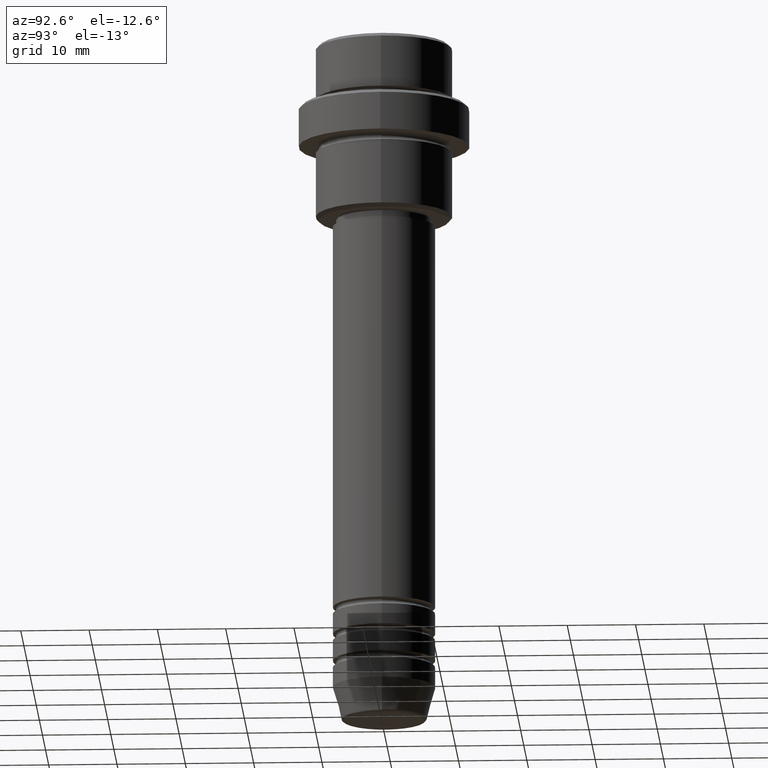
[diagram: clean part render]
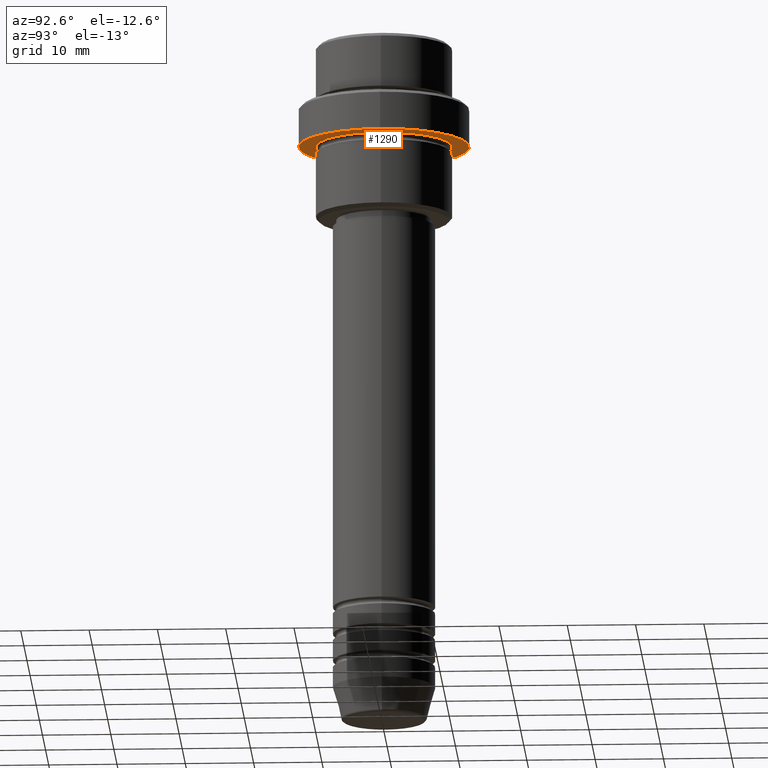
[diagram: same view with one face highlighted and labeled with its STEP entity id]
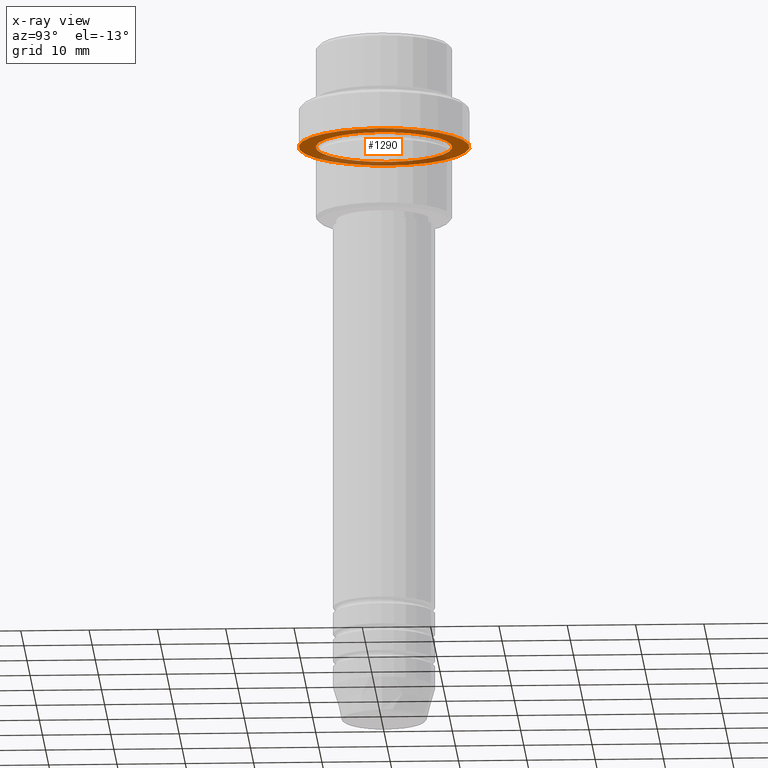
[diagram: x-ray of the same camera — body ghosted, the highlighted face saturated]
A machine part, auxiliary view. The second image highlights one B-rep face of the part: STEP entity #1290.
The next image is the same camera in x-ray: the body ghosted, the highlighted face saturated — about 30% of this face is hidden behind the body in this view.
In plain terms, the highlighted planar face has unit normal (0, 0, -1).
Its self-contained STEP definition (entity closure, byte-faithful):
#10 = DIRECTION ( 'NONE',  ( -1.000000000000000000, 0.000000000000000000, 0.000000000000000000 ) ) ;
#36 = CARTESIAN_POINT ( 'NONE',  ( 0.000000000000000000, 12.50000000000000000, -15.00000000000000000 ) ) ;
#37 = EDGE_LOOP ( 'NONE', ( #240, #303 ) ) ;
#114 = CIRCLE ( 'NONE', #390, 12.50000000000000000 ) ;
#116 = DIRECTION ( 'NONE',  ( -0.000000000000000000, -0.000000000000000000, 1.000000000000000000 ) ) ;
#121 = DIRECTION ( 'NONE',  ( 0.000000000000000000, 0.000000000000000000, -1.000000000000000000 ) ) ;
#136 = CIRCLE ( 'NONE', #933, 12.50000000000000000 ) ;
#156 = DIRECTION ( 'NONE',  ( -0.000000000000000000, -0.000000000000000000, 1.000000000000000000 ) ) ;
#200 = DIRECTION ( 'NONE',  ( -0.000000000000000000, -0.000000000000000000, 1.000000000000000000 ) ) ;
#212 = CARTESIAN_POINT ( 'NONE',  ( 12.50000000000000000, 0.000000000000000000, -15.00000000000000178 ) ) ;
#233 = DIRECTION ( 'NONE',  ( -0.000000000000000000, -0.000000000000000000, 1.000000000000000000 ) ) ;
#240 = ORIENTED_EDGE ( 'NONE', *, *, #537, .F. ) ;
#244 = DIRECTION ( 'NONE',  ( 1.000000000000000000, 0.000000000000000000, 0.000000000000000000 ) ) ;
#247 = DIRECTION ( 'NONE',  ( -1.000000000000000000, 0.000000000000000000, -0.000000000000000000 ) ) ;
#303 = ORIENTED_EDGE ( 'NONE', *, *, #407, .F. ) ;
#330 = VERTEX_POINT ( 'NONE', #212 ) ;
#362 = CARTESIAN_POINT ( 'NONE',  ( -12.50000000000000000, 1.530808498934191521E-15, -15.00000000000000178 ) ) ;
#371 = CIRCLE ( 'NONE', #957, 9.999999999999994671 ) ;
#390 = AXIS2_PLACEMENT_3D ( 'NONE', #1318, #233, #244 ) ;
#407 = EDGE_CURVE ( 'NONE', #590, #330, #114, .T. ) ;
#450 = CARTESIAN_POINT ( 'NONE',  ( 0.000000000000000000, 0.000000000000000000, -15.00000000000000000 ) ) ;
#452 = ORIENTED_EDGE ( 'NONE', *, *, #739, .T. ) ;
#537 = EDGE_CURVE ( 'NONE', #330, #590, #136, .T. ) ;
#561 = PLANE ( 'NONE',  #890 ) ;
#590 = VERTEX_POINT ( 'NONE', #362 ) ;
#633 = DIRECTION ( 'NONE',  ( -1.000000000000000000, 0.000000000000000000, 0.000000000000000000 ) ) ;
#639 = VERTEX_POINT ( 'NONE', #1403 ) ;
#656 = EDGE_LOOP ( 'NONE', ( #962, #452 ) ) ;
#681 = CIRCLE ( 'NONE', #1207, 9.999999999999994671 ) ;
#686 = CARTESIAN_POINT ( 'NONE',  ( 0.000000000000000000, 0.000000000000000000, -15.00000000000000178 ) ) ;
#739 = EDGE_CURVE ( 'NONE', #639, #792, #371, .T. ) ;
#742 = CARTESIAN_POINT ( 'NONE',  ( 0.000000000000000000, 0.000000000000000000, -15.00000000000000000 ) ) ;
#792 = VERTEX_POINT ( 'NONE', #1080 ) ;
#813 = EDGE_CURVE ( 'NONE', #792, #639, #681, .T. ) ;
#890 = AXIS2_PLACEMENT_3D ( 'NONE', #36, #121, #247 ) ;
#933 = AXIS2_PLACEMENT_3D ( 'NONE', #686, #156, #1261 ) ;
#957 = AXIS2_PLACEMENT_3D ( 'NONE', #742, #200, #633 ) ;
#962 = ORIENTED_EDGE ( 'NONE', *, *, #813, .T. ) ;
#980 = FACE_BOUND ( 'NONE', #656, .T. ) ;
#1080 = CARTESIAN_POINT ( 'NONE',  ( -9.999999999999994671, 0.000000000000000000, -15.00000000000000000 ) ) ;
#1115 = FACE_OUTER_BOUND ( 'NONE', #37, .T. ) ;
#1207 = AXIS2_PLACEMENT_3D ( 'NONE', #450, #116, #10 ) ;
#1261 = DIRECTION ( 'NONE',  ( 1.000000000000000000, 0.000000000000000000, 0.000000000000000000 ) ) ;
#1290 = ADVANCED_FACE ( 'NONE', ( #980, #1115 ), #561, .T. ) ;
#1318 = CARTESIAN_POINT ( 'NONE',  ( 0.000000000000000000, 0.000000000000000000, -15.00000000000000178 ) ) ;
#1403 = CARTESIAN_POINT ( 'NONE',  ( 9.999999999999994671, 1.224646799147352665E-15, -15.00000000000000000 ) ) ;